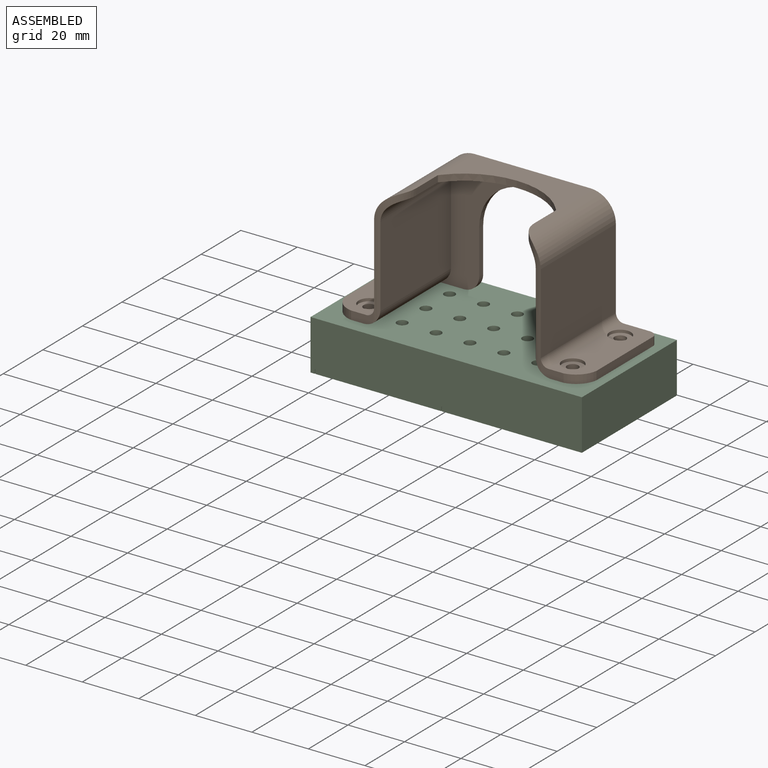
[diagram: assembled view]
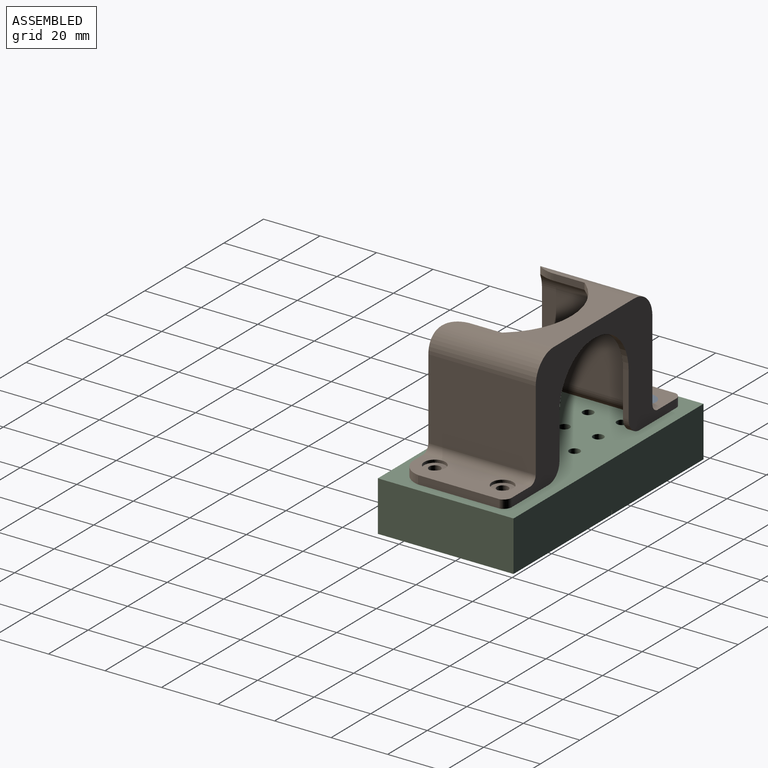
[diagram: assembled view, second angle]
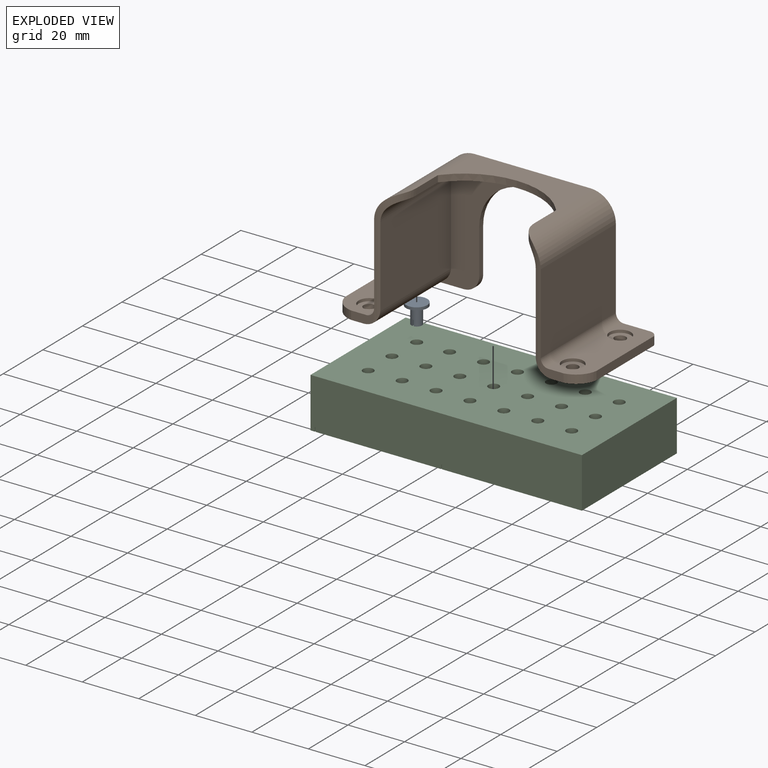
[diagram: exploded view]
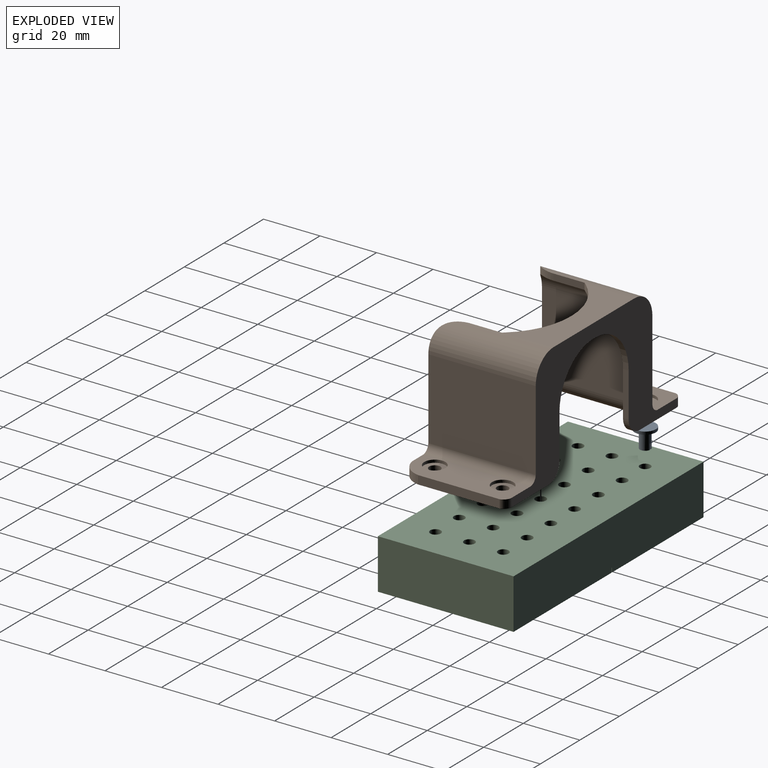
[diagram: exploded view, second angle]
ASSEMBLY  parts=3 mates=2
PART A: 9 faces, bbox 7.5x7.5x7 mm
  f0: plane 3.72x1.63mm, normal (0,0,1), area 4.6mm2, adj f1,f7
  f1: cylinder r=1.88mm len=6mm, axis (0,0,-1), area 68.7mm2, adj f0,f2,f4,f6,f7,f8
  f2: plane 3.72x1.63mm, normal (0,0,1), area 4.6mm2, adj f1,f6
  f3: cylinder r=3.75mm len=7.5mm, axis (0,0,-1), area 23.6mm2, adj f4,f5
  f4: plane 7.5x7.5mm, normal (0,0,1), area 33.1mm2, adj f1,f3
  f5: plane 7.5x7.5mm, normal (0,0,-1), area 44.2mm2, adj f3
  f6: plane 3.72x2mm, normal (-1,0,0), area 7.4mm2, adj f1,f2,f8
  f7: plane 3.72x2mm, normal (1,0,0), area 7.4mm2, adj f0,f1,f8
  f8: plane 3.75x0.5mm, normal (0,0,1), area 1.9mm2, adj f1,f6,f7
PART B: 54 faces, bbox 88.8x43.1x38 mm
  f0: plane 28.93x3mm, normal (-1,0,0), area 86.8mm2, adj f3,f10,f21,f22
  f1: plane 7.68x4.31mm, normal (0,0,1), area 22.9mm2, adj f3,f9,f10,f11,f20,f22
  f2: plane 83.02x43.1mm, normal (0,0,-1), area 1361.2mm2, adj f3,f4,f6,f8,f9,f10,f13,f14
  f3: plane 38x21.58mm, normal (0,-1,0), area 416.6mm2, adj f0,f1,f2,f11,f13,f17,f21,f22
  f4: cylinder r=9mm len=37.99mm, axis (0,0,-1), area 509.9mm2, adj f2,f6,f8,f18,f19,f20
  f5: plane 41.8x16mm, normal (0,-1,0), area 376.2mm2, adj f7,f17,f18,f33,f43
  f6: plane 40.96x17.48mm, normal (0,1,0), area 444.8mm2, adj f2,f4,f18,f32,f43
  f7: cylinder r=7.02mm len=35.67mm, axis (0,0,-1), area 361mm2, adj f5,f12,f17,f19,f20
  f8: plane 37.99x28.13mm, normal (-1,0,0), area 1068.5mm2, adj f2,f4,f9,f20
  f9: cylinder r=2.84mm len=38mm, axis (0,0,-1), area 160.2mm2, adj f1,f2,f8,f10,f20
  f10: plane 38x12.5mm, normal (0,1,0), area 372mm2, adj f0,f1,f2,f9,f21,f22,f25,f27
  f11: cylinder r=5.72mm len=36mm, axis (0,0,-1), area 300.5mm2, adj f1,f3,f12,f17,f20
  f12: plane 35.67x28.44mm, normal (1,0,0), area 1014.2mm2, adj f7,f11,f17,f20
  f13: cylinder r=5.47mm len=5.4mm, axis (0,0,1), area 16.8mm2, adj f2,f3,f14,f17
  f14: plane 15.71x2mm, normal (1,0,0), area 31.4mm2, adj f2,f13,f15,f17
  f15: cylinder r=17mm len=17mm, axis (0,0,1), area 53.4mm2, adj f2,f14,f16,f17
  f16: plane 2x0.48mm, normal (0.01,-1,0), area 1mm2, adj f2,f15,f17,f42
  f17: plane 65.85x40.8mm, normal (0,0,1), area 1014.5mm2, adj f3,f5,f7,f11,f12,f13,f14,f15
  f18: cylinder r=26.4mm len=20.9mm, axis (0,-1,0), area 55.2mm2, adj f4,f5,f6,f19,f43
  f19: plane 11x2.29mm, normal (1,0,0), area 25.2mm2, adj f4,f7,f18,f20
  f20: cylinder r=9mm len=42.06mm, axis (0,1,0), area 103.8mm2, adj f1,f4,f7,f8,f9,f11,f12,f19
  f21: cylinder r=3mm len=3mm, axis (0,-1,0), area 11.8mm2, adj f0,f2,f3,f10
  f22: cylinder r=8.17mm len=6.82mm, axis (0,-1,0), area 30.9mm2, adj f0,f1,f3,f10
  f23: cylinder r=2mm len=4mm, axis (0,-1,0), area 25.1mm2, adj f3,f26
  f24: cylinder r=2mm len=4mm, axis (0,-1,0), area 25.1mm2, adj f3,f28
  f25: cylinder r=3.75mm len=7.5mm, axis (0,1,0), area 23.6mm2, adj f10,f26
  f26: plane 7.5x7.5mm, normal (0,1,0), area 31.6mm2, adj f23,f25
  f27: cylinder r=3.75mm len=7.5mm, axis (0,1,0), area 23.6mm2, adj f10,f28
  f28: plane 7.5x7.5mm, normal (0,1,0), area 31.6mm2, adj f24,f27
  f29: plane 28.93x3mm, normal (1,0,0), area 86.8mm2, adj f31,f36,f46,f47
  f30: plane 7.68x4.31mm, normal (0,0,1), area 22.9mm2, adj f31,f35,f36,f37,f45,f47
  f31: plane 38x21.58mm, normal (0,-1,0), area 416.6mm2, adj f2,f17,f29,f30,f37,f39,f46,f47
  f32: cylinder r=9mm len=37.99mm, axis (0,0,-1), area 509.9mm2, adj f2,f6,f34,f43,f44,f45
  f33: cylinder r=7.02mm len=35.67mm, axis (0,0,-1), area 361mm2, adj f5,f17,f38,f44,f45
  f34: plane 37.99x28.13mm, normal (1,0,0), area 1068.5mm2, adj f2,f32,f35,f45
  f35: cylinder r=2.84mm len=38mm, axis (0,0,-1), area 160.2mm2, adj f2,f30,f34,f36,f45
  f36: plane 38x12.5mm, normal (0,1,0), area 372mm2, adj f2,f29,f30,f35,f46,f47,f50,f52
  f37: cylinder r=5.72mm len=36mm, axis (0,0,-1), area 300.5mm2, adj f17,f30,f31,f38,f45
  f38: plane 35.67x28.44mm, normal (-1,0,0), area 1014.2mm2, adj f17,f33,f37,f45
  f39: cylinder r=5.47mm len=5.4mm, axis (0,0,1), area 16.8mm2, adj f2,f17,f31,f40
  f40: plane 15.71x2mm, normal (-1,0,0), area 31.4mm2, adj f2,f17,f39,f41
  f41: cylinder r=17mm len=17mm, axis (0,0,1), area 53.4mm2, adj f2,f17,f40,f42
  f42: plane 2x0.48mm, normal (-0.01,-1,0), area 1mm2, adj f2,f16,f17,f41
  f43: cylinder r=26.4mm len=20.9mm, axis (0,-1,0), area 55.2mm2, adj f5,f6,f18,f32,f44
  f44: plane 11x2.29mm, normal (-1,0,0), area 25.2mm2, adj f32,f33,f43,f45
  f45: cylinder r=9mm len=42.06mm, axis (0,1,0), area 103.8mm2, adj f30,f32,f33,f34,f35,f37,f38,f44
  f46: cylinder r=3mm len=3mm, axis (0,-1,0), area 11.8mm2, adj f2,f29,f31,f36
  f47: cylinder r=8.17mm len=6.82mm, axis (0,-1,0), area 30.9mm2, adj f29,f30,f31,f36
  f48: cylinder r=2mm len=4mm, axis (0,-1,0), area 25.1mm2, adj f31,f51
  f49: cylinder r=2mm len=4mm, axis (0,-1,0), area 25.1mm2, adj f31,f53
  f50: cylinder r=3.75mm len=7.5mm, axis (0,1,0), area 23.6mm2, adj f36,f51
  f51: plane 7.5x7.5mm, normal (0,1,0), area 31.6mm2, adj f48,f50
  f52: cylinder r=3.75mm len=7.5mm, axis (0,1,0), area 23.6mm2, adj f36,f53
  f53: plane 7.5x7.5mm, normal (0,1,0), area 31.6mm2, adj f49,f52
PART C: 47 faces, bbox 96x48x17.8 mm
  f0: plane 15.25x9.75mm, normal (-1,0,0), area 148.7mm2, adj f4,f5,f36,f37
  f1: plane 15.25x10.88mm, normal (-1,0,0), area 138.3mm2, adj f4,f5,f21,f26,f29,f37
  f2: plane 15.25x9.75mm, normal (-1,0,0), area 148.7mm2, adj f4,f5,f35,f36
  f3: plane 15.25x10.88mm, normal (-1,0,0), area 138.3mm2, adj f4,f5,f6,f15,f32,f35
  f4: plane 45x44mm, normal (0,0,-1), area 1878.9mm2, adj f0,f1,f2,f3,f6,f16,f17,f18
  f5: plane 49.5x48mm, normal (0,0,-1), area 2245.2mm2, adj f0,f1,f2,f3,f15,f21,f34,f35
  f6: plane 45x13.75mm, normal (0,-1,0), area 618.7mm2, adj f3,f4,f10,f25,f32
  f7: plane 48x46.25mm, normal (0,0,-1), area 609mm2, adj f8,f9,f15,f21,f25,f31
  f8: plane 48x17.75mm, normal (-1,0,0), area 852mm2, adj f7,f11,f15,f21
  f9: plane 44.75x1.5mm, normal (0,-1,0), area 67.1mm2, adj f7,f10,f25,f31
  f10: plane 44.75x10mm, normal (0,0,1), area 447.5mm2, adj f6,f9,f25,f31
  f11: plane 96x48mm, normal (0,0,1), area 4376.1mm2, adj f8,f15,f16,f17,f18,f19,f20,f21
  f12: plane 44.5x1.5mm, normal (0,1,0), area 66.7mm2, adj f13,f14,f28,f30
  f13: plane 44.5x12mm, normal (0,0,-1), area 534mm2, adj f12,f21,f28,f30
  f14: plane 44.5x10mm, normal (0,0,1), area 445mm2, adj f12,f26,f28,f30
  f15: plane 96x17.75mm, normal (0,1,0), area 1703.6mm2, adj f3,f5,f7,f8,f11,f31,f32,f34
  f16: cylinder r=1.88mm len=3.75mm, axis (0,0,-1), area 29.5mm2, adj f4,f11
  f17: cylinder r=1.88mm len=3.75mm, axis (0,0,-1), area 29.5mm2, adj f4,f11
  f18: cylinder r=1.88mm len=3.75mm, axis (0,0,-1), area 29.5mm2, adj f4,f11
  f19: cylinder r=1.88mm len=3.75mm, axis (0,0,-1), area 29.5mm2, adj f4,f11
  f20: cylinder r=1.88mm len=3.75mm, axis (0,0,-1), area 29.5mm2, adj f4,f11
  f21: plane 96x17.75mm, normal (0,-1,0), area 1703.2mm2, adj f1,f5,f7,f8,f11,f13,f25,f27
  f22: cylinder r=1.88mm len=3.75mm, axis (0,0,-1), area 29.5mm2, adj f4,f11
  f23: cylinder r=1.88mm len=3.75mm, axis (0,0,-1), area 29.5mm2, adj f4,f11
  f24: cylinder r=1.88mm len=3.75mm, axis (0,0,-1), area 29.5mm2, adj f4,f11
  f25: plane 46x15.25mm, normal (1,0,0), area 659mm2, adj f4,f6,f7,f9,f10,f21,f26,f27
  f26: plane 45x13.75mm, normal (0,1,0), area 618.8mm2, adj f1,f4,f14,f25,f27,f29
  f27: plane 2x0.25mm, normal (0,0,-1), area 0.5mm2, adj f21,f25,f26,f28
  f28: plane 12x1.5mm, normal (-1,0,0), area 18mm2, adj f12,f13,f14,f21,f27
  f29: plane 2x0.25mm, normal (0,0,-1), area 0.5mm2, adj f1,f21,f26,f30
  f30: plane 12x1.5mm, normal (1,0,0), area 18mm2, adj f12,f13,f14,f21,f29
  f31: plane 12x1.5mm, normal (1,0,0), area 18mm2, adj f7,f9,f10,f15,f32
  f32: plane 2x0.25mm, normal (0,0,-1), area 0.5mm2, adj f3,f6,f15,f31
  f33: cylinder r=1.88mm len=3.75mm, axis (0,0,-1), area 29.5mm2, adj f4,f11
  f34: plane 48x17.75mm, normal (1,0,0), area 852mm2, adj f5,f11,f15,f21
  f35: cylinder r=1.88mm len=17.75mm, axis (0,0,1), area 172.3mm2, adj f2,f3,f4,f5,f11
  f36: cylinder r=1.88mm len=17.75mm, axis (0,0,1), area 172.3mm2, adj f0,f2,f4,f5,f11
  f37: cylinder r=1.88mm len=17.75mm, axis (0,0,1), area 172.3mm2, adj f0,f1,f4,f5,f11
  f38: cylinder r=1.88mm len=17.75mm, axis (0,0,1), area 209.1mm2, adj f5,f11
  f39: cylinder r=1.88mm len=17.75mm, axis (0,0,1), area 209.1mm2, adj f5,f11
  f40: cylinder r=1.88mm len=17.75mm, axis (0,0,1), area 209.1mm2, adj f5,f11
  f41: cylinder r=1.88mm len=17.75mm, axis (0,0,1), area 209.1mm2, adj f5,f11
  f42: cylinder r=1.88mm len=17.75mm, axis (0,0,1), area 209.1mm2, adj f5,f11
  f43: cylinder r=1.88mm len=17.75mm, axis (0,0,1), area 209.1mm2, adj f5,f11
  f44: cylinder r=1.88mm len=17.75mm, axis (0,0,1), area 209.1mm2, adj f5,f11
  f45: cylinder r=1.88mm len=17.75mm, axis (0,0,1), area 209.1mm2, adj f5,f11
  f46: cylinder r=1.88mm len=17.75mm, axis (0,0,1), area 209.1mm2, adj f5,f11
PLACE A rot(axis=(0,1,0),180deg) t=(49.88,12,20.75)mm
PLACE B rot(axis=(1,0,0),90deg) t=(85.88,0.12,39.3)mm
PLACE C t=(1.53,0,0)mm
MATE fastened A.f1 <-> B.f23  axis (0,0,1) through (49.88,12,19.75)mm
MATE fastened B.f23 <-> C.f33  axis (0,0,-1) through (49.88,12,17.75)mm
